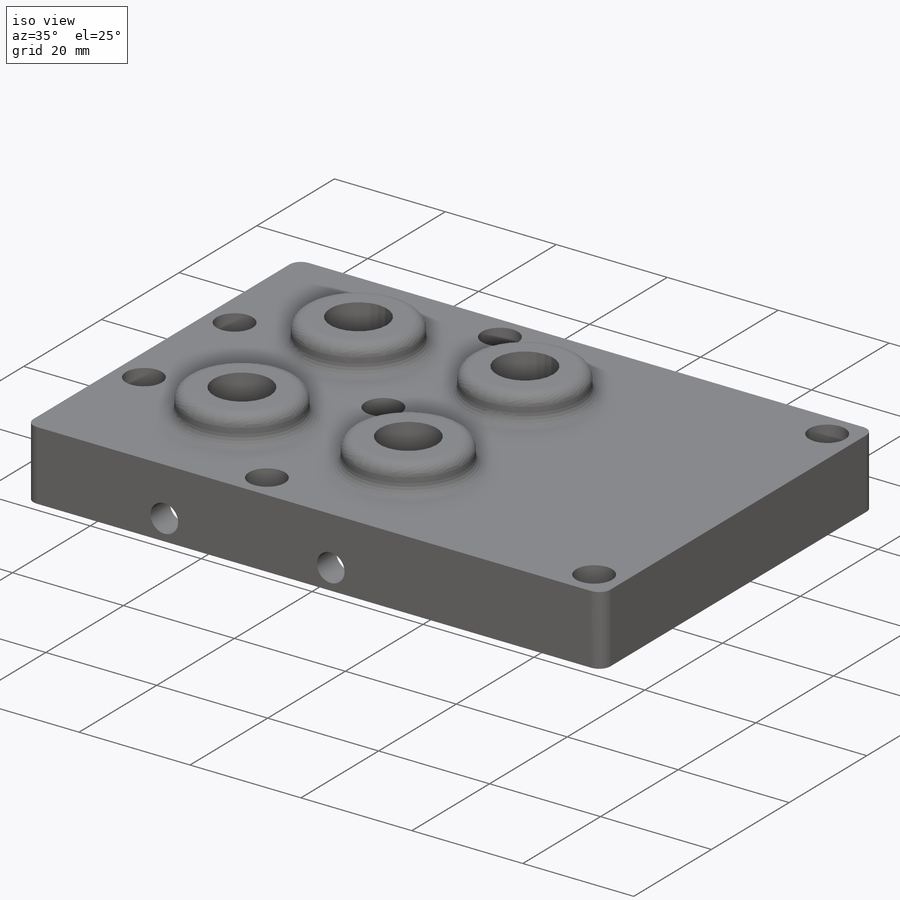
[diagram: iso view]
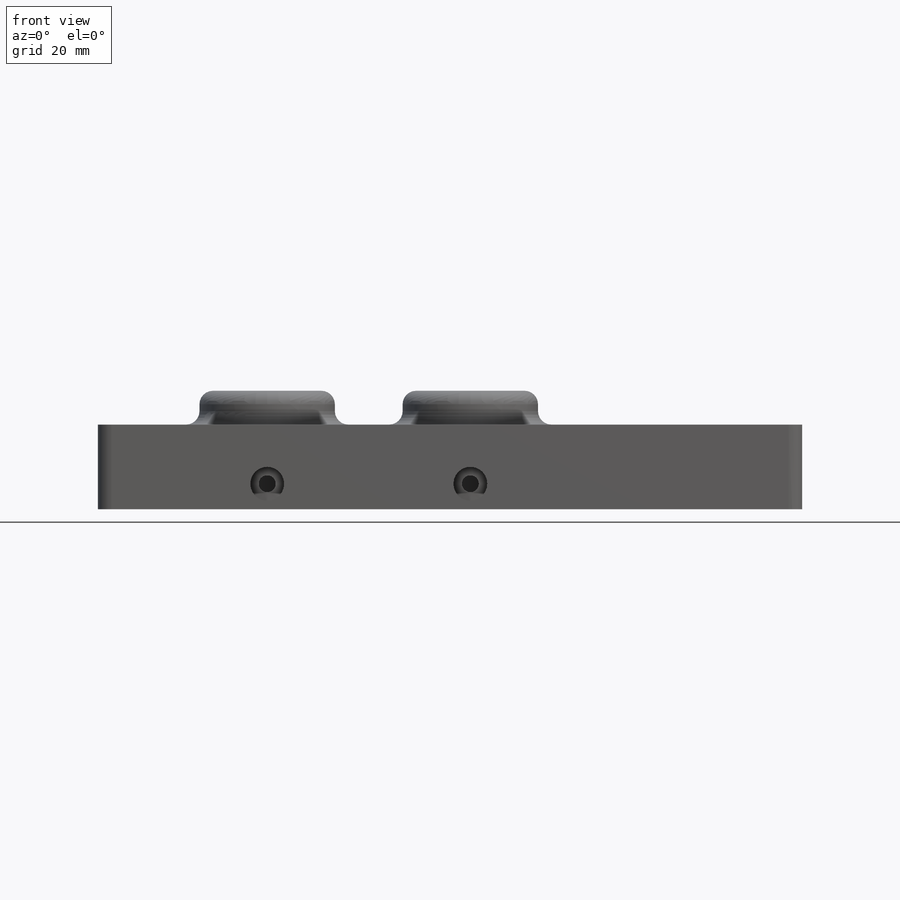
[diagram: front view]
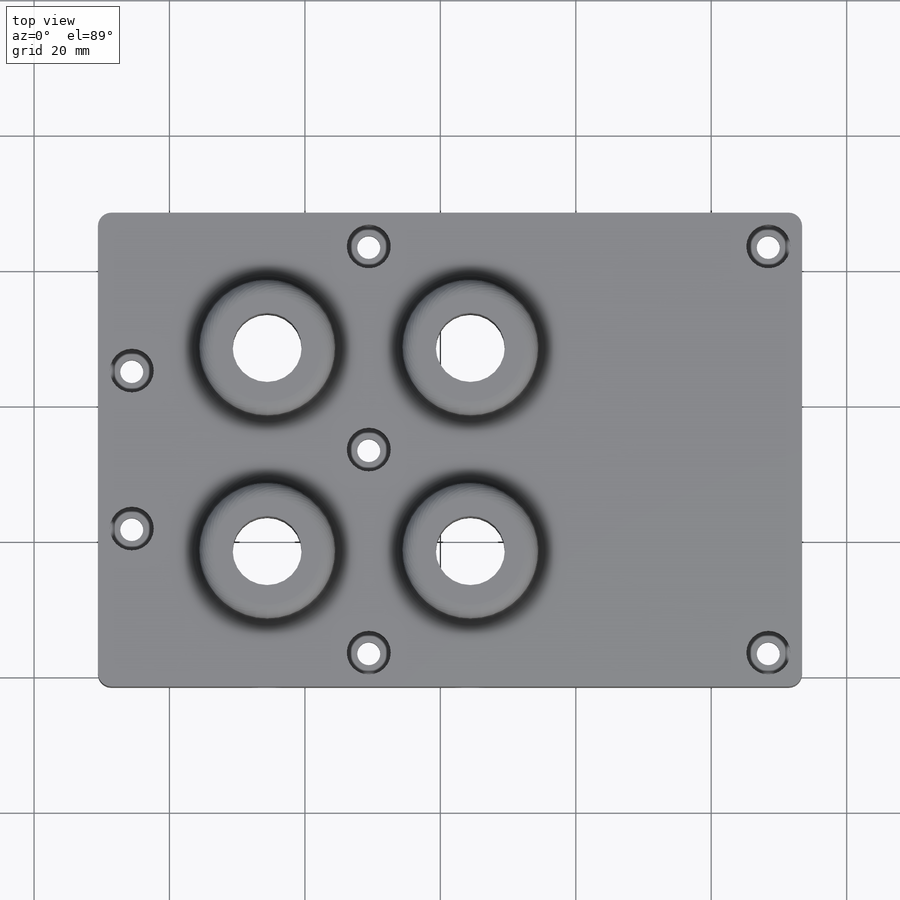
[diagram: top view]
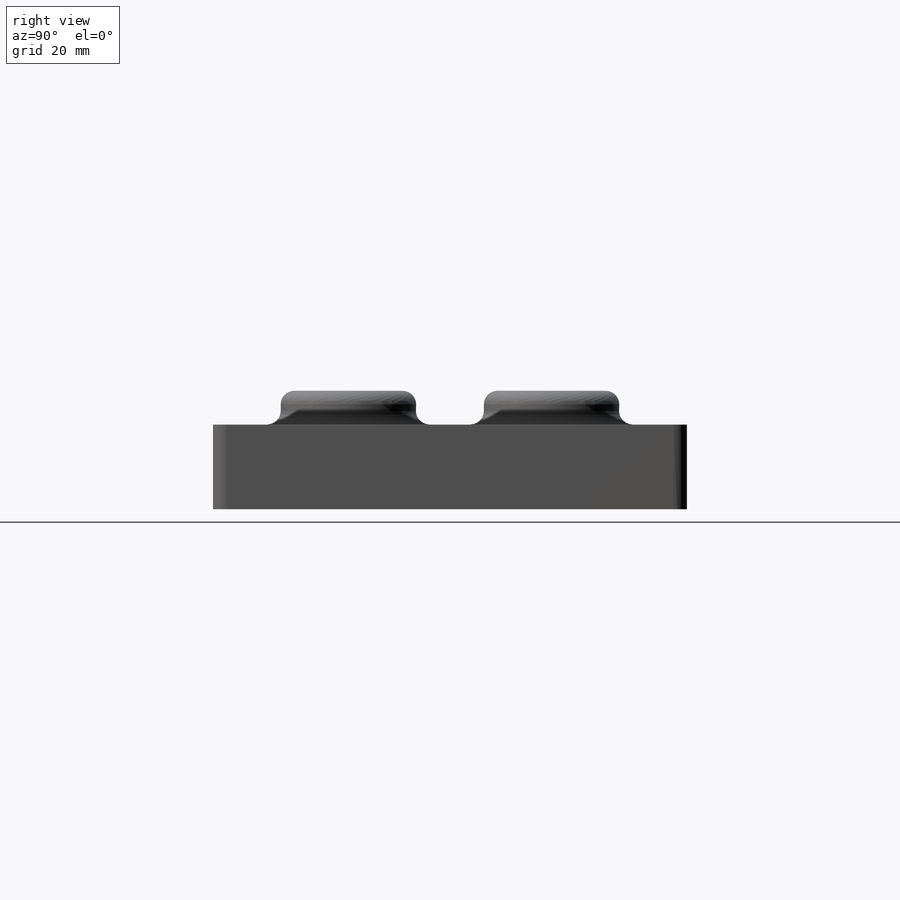
[diagram: right view]
SOLIDWORKS PART (.sldprt)
format: sldprt  version: not decoded by parser v0  size: 538,112 bytes
history: native  units: mm
features: sketch x16, extrude x4, cut_extrude x3, hole x3, fillet x2, material x1 (+11 scaffold rows collapsed)
feature tree (40):
  scaffold x11  (default folders/planes/origin — collapsed)
  material  "Material <not specified>"
  sketch  "Sketch1"  dims[D1=104.0mm D2=70.0mm]
  extrude  "Boss-Extrude1"  Depth=5mm
  sketch  "Sketch4"  dims[c1.D1=5.0mm c1.D2=5.0mm c1.D3=5.0mm c1.D4=~2.254185mm c1.D5=104.0mm c2.D4=5.0mm]
  extrude  "Boss-Extrude3"  Depth=7.5mm
  sketch  "Sketch2"  dims[D1=20.0mm D4=20.0mm D2=25.0mm D3=20.0mm D5=20.0mm]
  extrude  "Boss-Extrude2"  Depth=5mm
  sketch  "Sketch3"  dims[D1=10.2mm D2=10.2mm D3=10.2mm D4=10.2mm]
  cut_extrude  "Cut-Extrude1"  [1 undecoded]
  fillet  "Fillet3"  Radius=2mm
  sketch  "Sketch5"  dims[D1=~23.333333mm D2=5.0mm D3=5.0mm D4=~23.333333mm D5=35.0mm D6=40.0mm D7=5.0mm D8=5.0mm D9=5.0mm D10=5.0mm]
  sketch  "Sketch8"  dims[D1=10.0mm]
  extrude  "Boss-Extrude5"  [1 undecoded]
  hole  "CBORE for M3 SHCS2"  Diameter=3.4mm Depth=12.5mm
  sketch  "3DSketch2"
  sketch  "Sketch9"  dims[hole-wizard template sketch: 42 standard entries collapsed; hole parameters kept: c12.Thru Hole Depth=12.5mm c12.C'Bore Dia.=6.5mm c12.C'Bore Depth=8.0mm]
  sketch  "Sketch10"  dims[c1.D1=25.0mm c1.D2=2.5mm c1.D3=30.0mm c1.D4=2.5mm c2.D2=3.75mm c2.D5=10.0mm c2.D4=3.75mm]
  fillet  "Fillet4"  Radius=2mm
  hole  "Tap Drill for M3x0.5 Tap3"  Diameter=2.5mm Depth=20mm
  sketch  "3DSketch4"
  sketch  "Sketch12"  dims[hole-wizard template sketch: 47 standard entries collapsed; hole parameters kept: c15.Hole Depth=20.0mm c15.D3=~14.816244mm c15.Drill Angle=118.0deg]
  sketch  "Sketch13"  dims[D1=5.0mm D2=5.0mm]
  cut_extrude  "Cut-Extrude2"  [1 undecoded]
  sketch  "Sketch14"  dims[D1=3.75mm D2=3.75mm D3=25.0mm D4=30.0mm]
  hole  "Tap Drill for M3x0.5 Tap4"  Diameter=2.5mm Depth=20mm
  sketch  "Sketch16"
  sketch  "Sketch15"  dims[hole-wizard template sketch: 47 standard entries collapsed; hole parameters kept: c15.Hole Depth=20.0mm c15.D3=~14.816244mm c15.Drill Angle=118.0deg]
  sketch  "Sketch18"  dims[D1=5.0mm D2=5.0mm]
  cut_extrude  "Cut-Extrude3"  [1 undecoded]
decode coverage: 21 of 28 modeling features carry decoded parameters
note: ~ marks probable driven/reference dimensions
note: 4 parameter values undecoded
summary: no parameter record found for 4 features
note: suppression state not decoded; provenance and decode notes live in map.json
